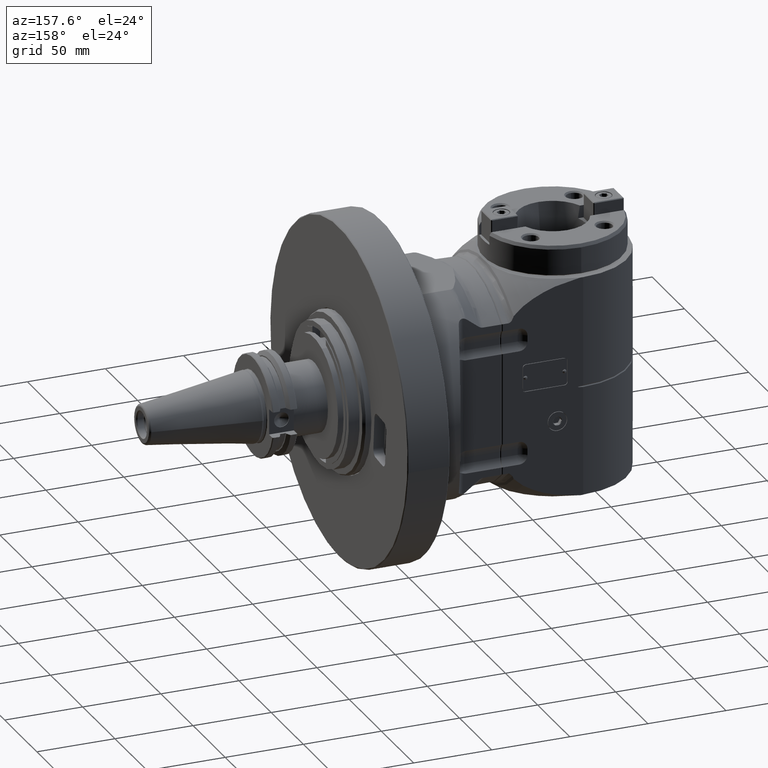
[diagram: clean part render]
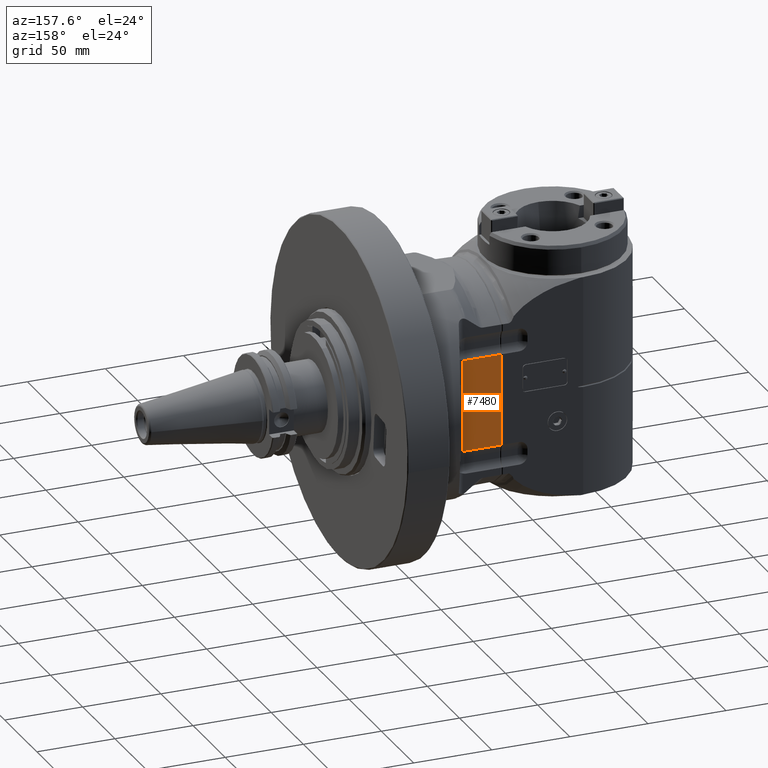
[diagram: same view with one face highlighted and labeled with its STEP entity id]
A machine part, auxiliary view. The second image highlights one B-rep face of the part: STEP entity #7480.
In plain terms, the highlighted planar face has unit normal (-0, -1, 0).
Its self-contained STEP definition (entity closure, byte-faithful):
#544=CIRCLE('',#8195,5.361902647382);
#546=CIRCLE('',#8199,5.361902647382);
#1060=FACE_OUTER_BOUND('',#1551,.T.);
#1551=EDGE_LOOP('',(#5693,#5694,#5695,#5696,#5697,#5698));
#2165=LINE('',#12672,#2664);
#2166=LINE('',#12677,#2665);
#2167=LINE('',#12679,#2666);
#2168=LINE('',#12680,#2667);
#2664=VECTOR('',#9606,59.46724184201);
#2665=VECTOR('',#9611,22.5);
#2666=VECTOR('',#9612,58.6939759534);
#2667=VECTOR('',#9613,22.5);
#3325=VERTEX_POINT('',#12643);
#3326=VERTEX_POINT('',#12652);
#3328=VERTEX_POINT('',#12663);
#3329=VERTEX_POINT('',#12674);
#3330=VERTEX_POINT('',#12676);
#3331=VERTEX_POINT('',#12678);
#4193=EDGE_CURVE('',#3326,#3325,#544,.T.);
#4197=EDGE_CURVE('',#3328,#3325,#2165,.T.);
#4198=EDGE_CURVE('',#3329,#3328,#546,.T.);
#4199=EDGE_CURVE('',#3330,#3329,#2166,.T.);
#4200=EDGE_CURVE('',#3330,#3331,#2167,.T.);
#4201=EDGE_CURVE('',#3326,#3331,#2168,.T.);
#5693=ORIENTED_EDGE('',*,*,#4197,.F.);
#5694=ORIENTED_EDGE('',*,*,#4198,.F.);
#5695=ORIENTED_EDGE('',*,*,#4199,.F.);
#5696=ORIENTED_EDGE('',*,*,#4200,.T.);
#5697=ORIENTED_EDGE('',*,*,#4201,.F.);
#5698=ORIENTED_EDGE('',*,*,#4193,.T.);
#7180=PLANE('',#8198);
#7480=ADVANCED_FACE('',(#1060),#7180,.F.);
#8195=AXIS2_PLACEMENT_3D('',#12653,#9600,#9601);
#8198=AXIS2_PLACEMENT_3D('',#12673,#9607,#9608);
#8199=AXIS2_PLACEMENT_3D('',#12675,#9609,#9610);
#9600=DIRECTION('center_axis',(0.,0.,1.));
#9601=DIRECTION('ref_axis',(1.457685938624E-13,1.,0.));
#9606=DIRECTION('',(0.,-1.,0.));
#9607=DIRECTION('center_axis',(0.,0.,1.));
#9608=DIRECTION('ref_axis',(-1.,0.,0.));
#9609=DIRECTION('center_axis',(0.,0.,-1.));
#9610=DIRECTION('ref_axis',(0.,-1.,0.));
#9611=DIRECTION('',(-0.999999999999998,5.78843137570099E-8,2.381743513524E-8));
#9612=DIRECTION('',(0.,-1.,3.697138385606E-13));
#9613=DIRECTION('',(0.999999999999998,5.78819700712699E-8,-2.38164713235E-8));
#12643=CARTESIAN_POINT('',(16.00083056686,-29.73362092102,-47.5));
#12652=CARTESIAN_POINT('',(18.,-29.34698927909,-47.5));
#12653=CARTESIAN_POINT('Origin',(18.,-34.70889192647,-47.5));
#12663=CARTESIAN_POINT('',(16.00083056686,29.73362092099,-47.5));
#12672=CARTESIAN_POINT('',(16.00083056686,29.73362092099,-47.5));
#12673=CARTESIAN_POINT('Origin',(39.5,-92.4000024,-47.5));
#12674=CARTESIAN_POINT('',(18.,29.34698927905,-47.5));
#12675=CARTESIAN_POINT('Origin',(18.,34.70889192643,-47.5));
#12676=CARTESIAN_POINT('',(40.4999999726819,29.3469887108875,-47.5000004198505));
#12677=CARTESIAN_POINT('',(40.5,29.34698797665,-47.50000053589));
#12678=CARTESIAN_POINT('',(40.4999999726847,-29.346988710895,-47.50000041986));
#12679=CARTESIAN_POINT('',(40.5,29.34698797665,-47.50000053589));
#12680=CARTESIAN_POINT('',(18.,-29.34698927909,-47.5));